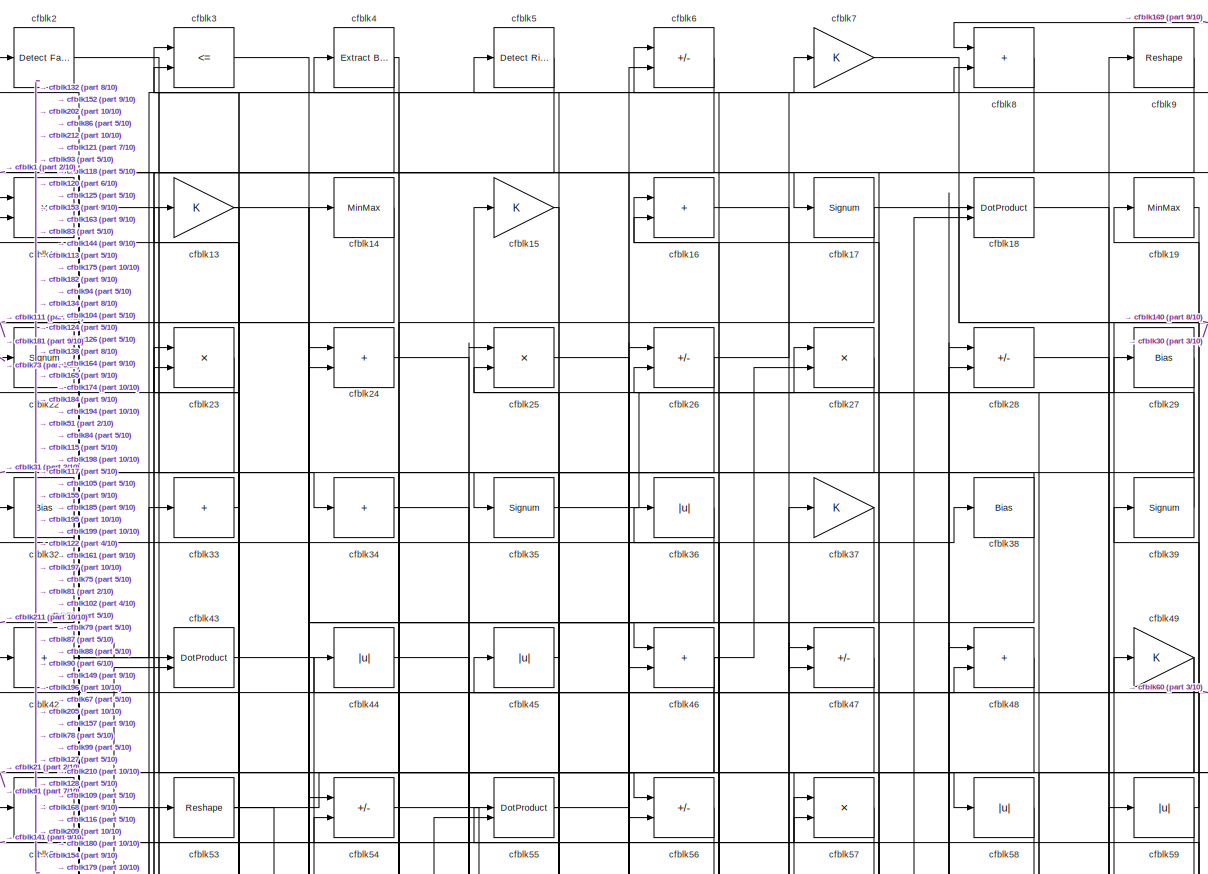
[diagram: root canvas - part 1/10, full width, top band]
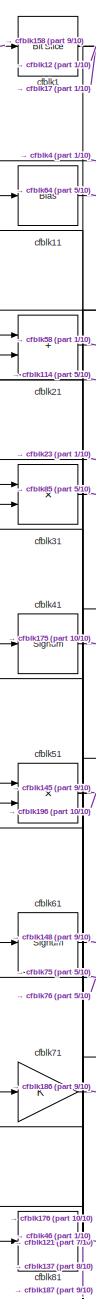
[diagram: root canvas - part 2/10, top left region]
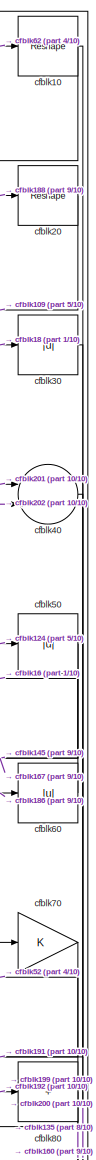
[diagram: root canvas - part 3/10, top right region]
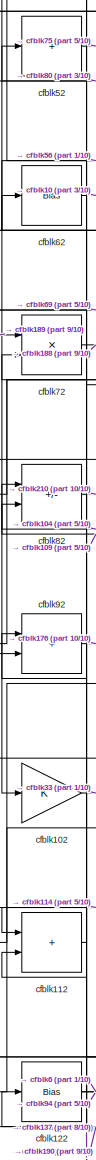
[diagram: root canvas - part 4/10, middle left region]
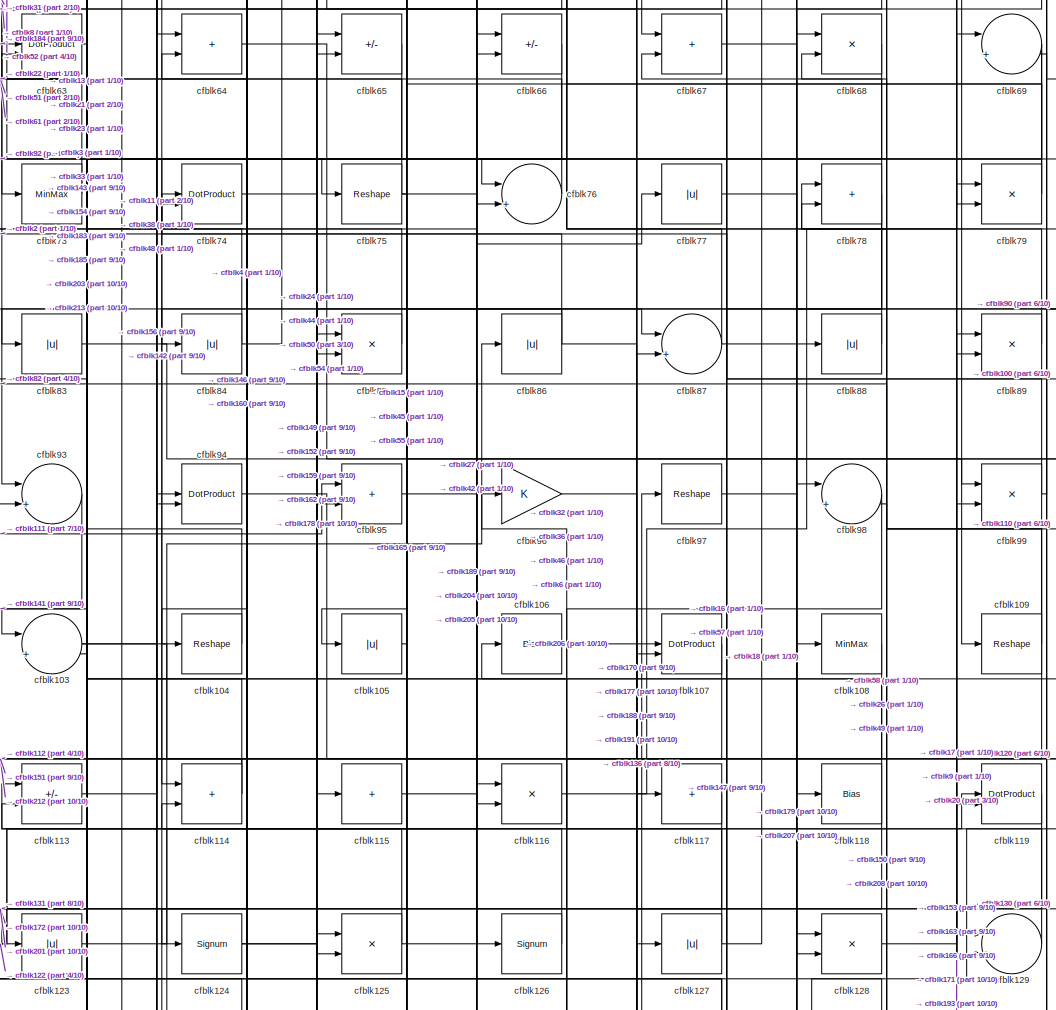
[diagram: root canvas - part 5/10, central region]
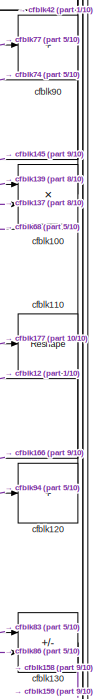
[diagram: root canvas - part 6/10, middle right region]
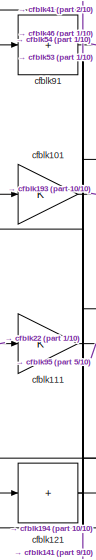
[diagram: root canvas - part 7/10, middle left region]
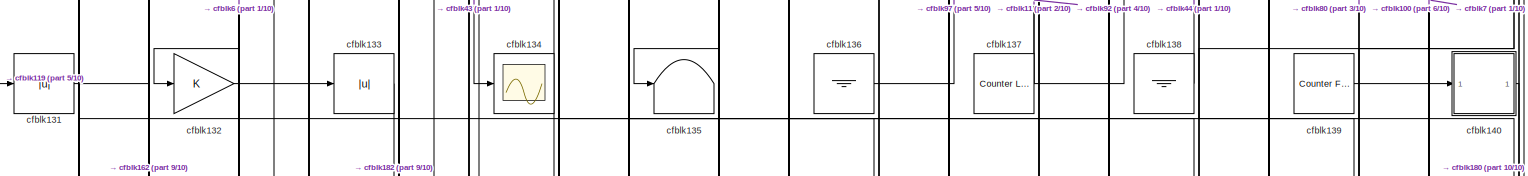
[diagram: root canvas - part 8/10, full width, middle band]
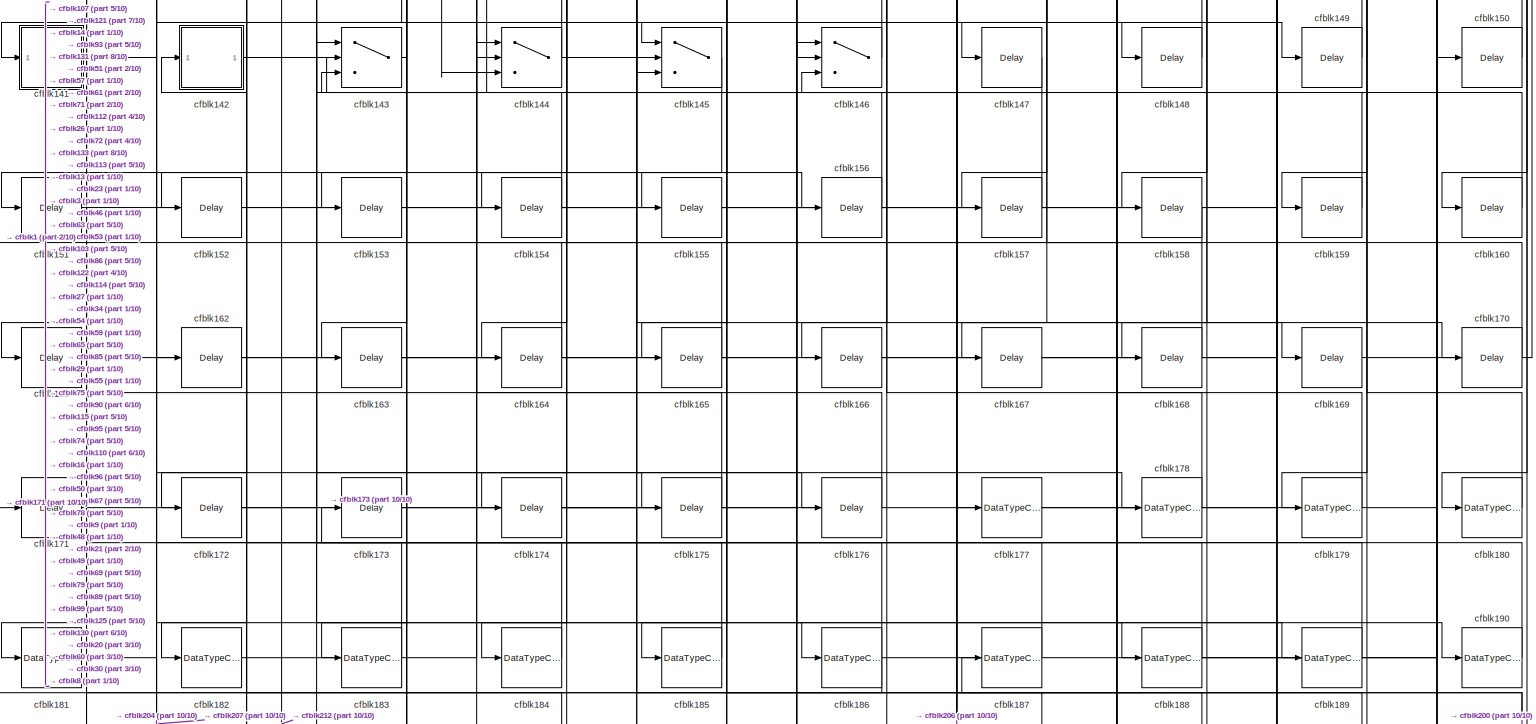
[diagram: root canvas - part 9/10, full width, bottom band]
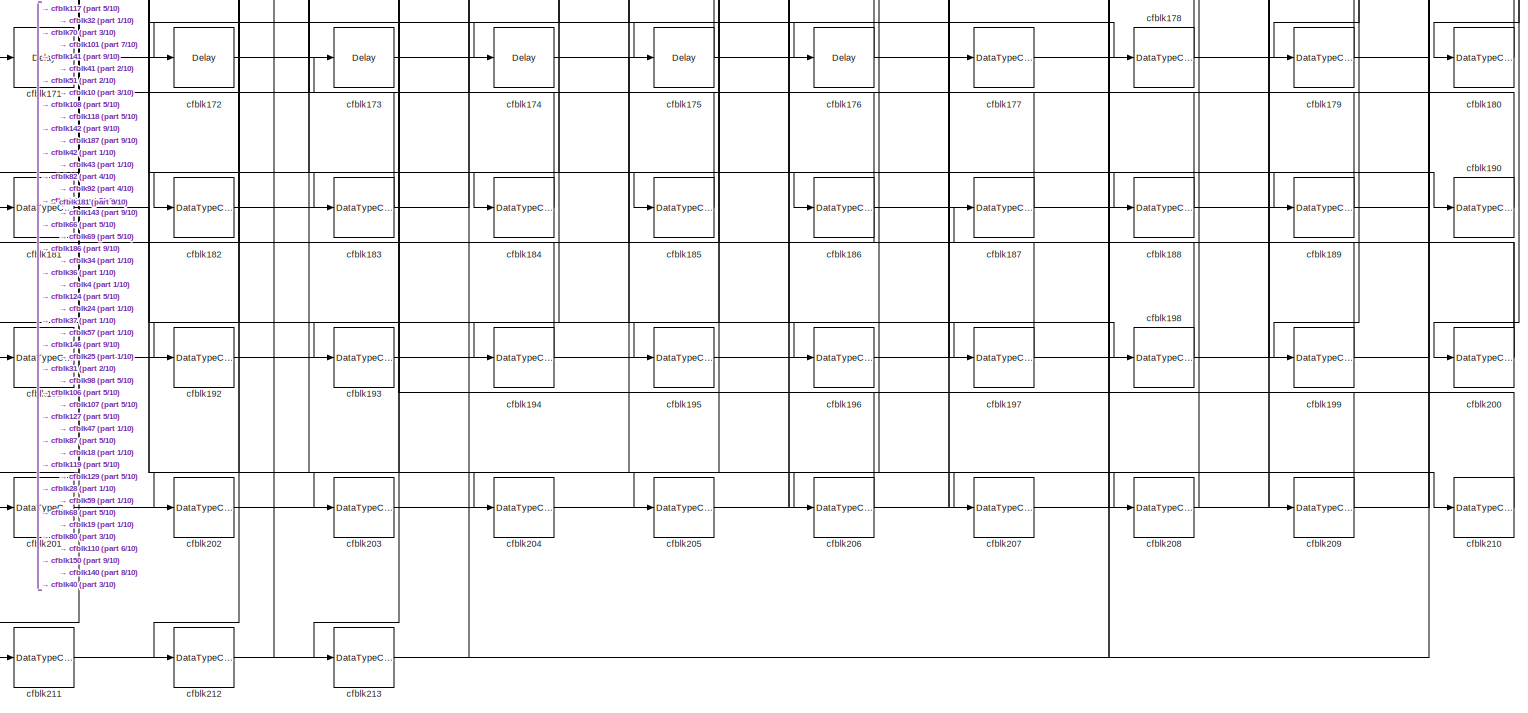
[diagram: root canvas - part 10/10, full width, bottom band]
MODEL slx_0f4fd5a448fb
KIND model
CONFIG AbsTol = auto
CONFIG EnableMultiTasking = off
CONFIG FixedStep = auto
CONFIG MaxStep = auto
CONFIG MinStep = auto
CONFIG RelTol = 1e-3
CONFIG SampleTimeConstraint = Unconstrained
CONFIG SolverName = VariableStepAuto
CONFIG StartTime = 0.0
CONFIG StopTime = 10.0
BLOCK [Reference] cfblk1  REF=hdlsllib/Logic and Bit
Operations/Bit Slice
  SourceBlock = hdlsllib/Logic and Bit\nOperations/Bit Slice
  SourceType = Bit Slice
BLOCK [Reshape] cfblk10
BLOCK [Product] cfblk100
  Inputs = */
  RndMeth = Zero
  SaturateOnIntegerOverflow = on
BLOCK [Gain] cfblk101
BLOCK [Gain] cfblk102
BLOCK [Sum] cfblk103
  Inputs = |++
BLOCK [Reshape] cfblk104
BLOCK [Abs] cfblk105
  SaturateOnIntegerOverflow = off
BLOCK [Bias] cfblk106
  Bias = 0.0
  SaturateOnIntegerOverflow = off
BLOCK [DotProduct] cfblk107
  OutDataTypeStr = Inherit: Inherit via internal rule
BLOCK [MinMax] cfblk108
BLOCK [Reshape] cfblk109
BLOCK [Bias] cfblk11
  Bias = 0.0
  SaturateOnIntegerOverflow = off
BLOCK [Reshape] cfblk110
BLOCK [Gain] cfblk111
BLOCK [Sum] cfblk112
  IconShape = rectangular
BLOCK [Sum] cfblk113
  IconShape = rectangular
  Inputs = +-
BLOCK [Sum] cfblk114
  IconShape = rectangular
BLOCK [Sum] cfblk115
  IconShape = rectangular
  Inputs = +
BLOCK [Product] cfblk116
  Inputs = */
  RndMeth = Zero
  SaturateOnIntegerOverflow = on
BLOCK [Sum] cfblk117
  IconShape = rectangular
  Inputs = +
BLOCK [Bias] cfblk118
  Bias = 0.0
  SaturateOnIntegerOverflow = off
BLOCK [DotProduct] cfblk119
  OutDataTypeStr = Inherit: Inherit via internal rule
BLOCK [Product] cfblk12
  Inputs = */
  RndMeth = Zero
  SaturateOnIntegerOverflow = on
BLOCK [Sum] cfblk120
  IconShape = rectangular
  Inputs = +
BLOCK [Sum] cfblk121
  IconShape = rectangular
  Inputs = +
BLOCK [Bias] cfblk122
  Bias = 0.0
  SaturateOnIntegerOverflow = off
BLOCK [Abs] cfblk123
  SaturateOnIntegerOverflow = off
BLOCK [Signum] cfblk124
BLOCK [Product] cfblk125
  Inputs = */
  RndMeth = Zero
  SaturateOnIntegerOverflow = on
BLOCK [Signum] cfblk126
BLOCK [Abs] cfblk127
  SaturateOnIntegerOverflow = off
BLOCK [Product] cfblk128
  Inputs = */
  RndMeth = Zero
  SaturateOnIntegerOverflow = on
BLOCK [Sum] cfblk129
  Inputs = |++
BLOCK [Gain] cfblk13
BLOCK [Sum] cfblk130
  IconShape = rectangular
  Inputs = +-
BLOCK [Abs] cfblk131
  SaturateOnIntegerOverflow = off
BLOCK [Gain] cfblk132
BLOCK [Abs] cfblk133
  SaturateOnIntegerOverflow = off
BLOCK [Scope] cfblk134
  Floating = off
  NumInputPorts = 1
  ScopeSpecificationString = Simulink.scopes.TimeScopeBlockCfg('CurrentConfiguration', extmgr.ConfigurationSet(extmgr.Configuration('Core','General UI',true),extmgr.Configuration('Core','Source UI',true),extmgr.Configuration('Sources','WiredSimulink',true,'DataLoggingVariableName','ScopeData2','DataLoggingSaveFormat','Array','DataLoggingLimitDataPoints',true,'DataLoggingDecimation','1'),extmgr.Configuration('Visuals','Time Do...<+868ch>
BLOCK [Terminator] cfblk135
BLOCK [Ground] cfblk136
BLOCK [Reference] cfblk137  REF=hdlsllib/Sources/Counter
Limited
  SourceBlock = hdlsllib/Sources/Counter\nLimited
  SourceType = Counter Limited
BLOCK [Ground] cfblk138
BLOCK [Reference] cfblk139  REF=hdlsllib/Sources/Counter
Free-Running
  SourceBlock = hdlsllib/Sources/Counter\nFree-Running
  SourceType = Counter Free-Running
BLOCK [MinMax] cfblk14
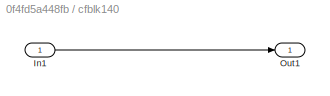
BLOCK [SubSystem] cfblk140
  LibrarySourceBlock = hdlsllib/Ports &\nSubsystems/Subsystem
BLOCK [Inport] cfblk140/In1
BLOCK [Outport] cfblk140/Out1
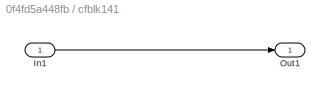
BLOCK [SubSystem] cfblk141
  LibrarySourceBlock = hdlsllib/Ports &\nSubsystems/Subsystem
BLOCK [Inport] cfblk141/In1
BLOCK [Outport] cfblk141/Out1
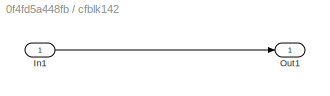
BLOCK [SubSystem] cfblk142
  LibrarySourceBlock = hdlsllib/Ports &\nSubsystems/Subsystem
BLOCK [Inport] cfblk142/In1
BLOCK [Outport] cfblk142/Out1
BLOCK [Switch] cfblk143
  InputSameDT = off
  SaturateOnIntegerOverflow = off
BLOCK [Switch] cfblk144
  InputSameDT = off
  SaturateOnIntegerOverflow = off
BLOCK [Switch] cfblk145
  InputSameDT = off
  SaturateOnIntegerOverflow = off
BLOCK [Switch] cfblk146
  InputSameDT = off
  SaturateOnIntegerOverflow = off
BLOCK [Delay] cfblk147
  InputPortMap = u0
  SampleTime = 1
BLOCK [Delay] cfblk148
  InputPortMap = u0
  SampleTime = 1
BLOCK [Delay] cfblk149
  InputPortMap = u0
  SampleTime = 1
BLOCK [Gain] cfblk15
BLOCK [Delay] cfblk150
  InputPortMap = u0
  SampleTime = 1
BLOCK [Delay] cfblk151
  InputPortMap = u0
  SampleTime = 1
BLOCK [Delay] cfblk152
  InputPortMap = u0
  SampleTime = 1
BLOCK [Delay] cfblk153
  InputPortMap = u0
  SampleTime = 1
BLOCK [Delay] cfblk154
  InputPortMap = u0
  SampleTime = 1
BLOCK [Delay] cfblk155
  InputPortMap = u0
  SampleTime = 1
BLOCK [Delay] cfblk156
  InputPortMap = u0
  SampleTime = 1
BLOCK [Delay] cfblk157
  InputPortMap = u0
  SampleTime = 1
BLOCK [Delay] cfblk158
  InputPortMap = u0
  SampleTime = 1
BLOCK [Delay] cfblk159
  InputPortMap = u0
  SampleTime = 1
BLOCK [Sum] cfblk16
  IconShape = rectangular
BLOCK [Delay] cfblk160
  InputPortMap = u0
  SampleTime = 1
BLOCK [Delay] cfblk161
  InputPortMap = u0
  SampleTime = 1
BLOCK [Delay] cfblk162
  InputPortMap = u0
  SampleTime = 1
BLOCK [Delay] cfblk163
  InputPortMap = u0
  SampleTime = 1
BLOCK [Delay] cfblk164
  InputPortMap = u0
  SampleTime = 1
BLOCK [Delay] cfblk165
  InputPortMap = u0
  SampleTime = 1
BLOCK [Delay] cfblk166
  InputPortMap = u0
  SampleTime = 1
BLOCK [Delay] cfblk167
  InputPortMap = u0
  SampleTime = 1
BLOCK [Delay] cfblk168
  InputPortMap = u0
  SampleTime = 1
BLOCK [Delay] cfblk169
  InputPortMap = u0
  SampleTime = 1
BLOCK [Signum] cfblk17
BLOCK [Delay] cfblk170
  InputPortMap = u0
  SampleTime = 1
BLOCK [Delay] cfblk171
  InputPortMap = u0
  SampleTime = 1
BLOCK [Delay] cfblk172
  InputPortMap = u0
  SampleTime = 1
BLOCK [Delay] cfblk173
  InputPortMap = u0
  SampleTime = 1
BLOCK [Delay] cfblk174
  InputPortMap = u0
  SampleTime = 1
BLOCK [Delay] cfblk175
  InputPortMap = u0
  SampleTime = 1
BLOCK [Delay] cfblk176
  InputPortMap = u0
  SampleTime = 1
BLOCK [DataTypeConversion] cfblk177
  OutDataTypeStr = uint8
  RndMeth = Floor
  SaturateOnIntegerOverflow = off
BLOCK [DataTypeConversion] cfblk178
  OutDataTypeStr = uint8
  RndMeth = Floor
  SaturateOnIntegerOverflow = off
BLOCK [DataTypeConversion] cfblk179
  OutDataTypeStr = uint8
  RndMeth = Floor
  SaturateOnIntegerOverflow = off
BLOCK [DotProduct] cfblk18
  OutDataTypeStr = Inherit: Inherit via internal rule
BLOCK [DataTypeConversion] cfblk180
  OutDataTypeStr = uint8
  RndMeth = Floor
  SaturateOnIntegerOverflow = off
BLOCK [DataTypeConversion] cfblk181
  OutDataTypeStr = uint8
  RndMeth = Floor
  SaturateOnIntegerOverflow = off
BLOCK [DataTypeConversion] cfblk182
  OutDataTypeStr = uint8
  RndMeth = Floor
  SaturateOnIntegerOverflow = off
BLOCK [DataTypeConversion] cfblk183
  OutDataTypeStr = uint8
  RndMeth = Floor
  SaturateOnIntegerOverflow = off
BLOCK [DataTypeConversion] cfblk184
  OutDataTypeStr = uint8
  RndMeth = Floor
  SaturateOnIntegerOverflow = off
BLOCK [DataTypeConversion] cfblk185
  OutDataTypeStr = uint8
  RndMeth = Floor
  SaturateOnIntegerOverflow = off
BLOCK [DataTypeConversion] cfblk186
  RndMeth = Floor
  SaturateOnIntegerOverflow = off
BLOCK [DataTypeConversion] cfblk187
  OutDataTypeStr = uint8
  RndMeth = Floor
  SaturateOnIntegerOverflow = off
BLOCK [DataTypeConversion] cfblk188
  RndMeth = Floor
  SaturateOnIntegerOverflow = off
BLOCK [DataTypeConversion] cfblk189
  OutDataTypeStr = uint8
  RndMeth = Floor
  SaturateOnIntegerOverflow = off
BLOCK [MinMax] cfblk19
BLOCK [DataTypeConversion] cfblk190
  OutDataTypeStr = uint8
  RndMeth = Floor
  SaturateOnIntegerOverflow = off
BLOCK [DataTypeConversion] cfblk191
  OutDataTypeStr = uint8
  RndMeth = Floor
  SaturateOnIntegerOverflow = off
BLOCK [DataTypeConversion] cfblk192
  OutDataTypeStr = uint8
  RndMeth = Floor
  SaturateOnIntegerOverflow = off
BLOCK [DataTypeConversion] cfblk193
  OutDataTypeStr = uint8
  RndMeth = Floor
  SaturateOnIntegerOverflow = off
BLOCK [DataTypeConversion] cfblk194
  OutDataTypeStr = uint8
  RndMeth = Floor
  SaturateOnIntegerOverflow = off
BLOCK [DataTypeConversion] cfblk195
  OutDataTypeStr = uint8
  RndMeth = Floor
  SaturateOnIntegerOverflow = off
BLOCK [DataTypeConversion] cfblk196
  OutDataTypeStr = uint8
  RndMeth = Floor
  SaturateOnIntegerOverflow = off
BLOCK [DataTypeConversion] cfblk197
  RndMeth = Floor
  SaturateOnIntegerOverflow = off
BLOCK [DataTypeConversion] cfblk198
  OutDataTypeStr = uint8
  RndMeth = Floor
  SaturateOnIntegerOverflow = off
BLOCK [DataTypeConversion] cfblk199
  OutDataTypeStr = uint8
  RndMeth = Floor
  SaturateOnIntegerOverflow = off
BLOCK [Reference] cfblk2  REF=hdlsllib/Logic and Bit
Operations/Detect Fall
Negative
  SourceBlock = hdlsllib/Logic and Bit\nOperations/Detect Fall\nNegative
  SourceType = Detect Fall Negative
BLOCK [Reshape] cfblk20
BLOCK [DataTypeConversion] cfblk200
  RndMeth = Floor
  SaturateOnIntegerOverflow = off
BLOCK [DataTypeConversion] cfblk201
  OutDataTypeStr = uint8
  RndMeth = Floor
  SaturateOnIntegerOverflow = off
BLOCK [DataTypeConversion] cfblk202
  OutDataTypeStr = uint8
  RndMeth = Floor
  SaturateOnIntegerOverflow = off
BLOCK [DataTypeConversion] cfblk203
  OutDataTypeStr = uint8
  RndMeth = Floor
  SaturateOnIntegerOverflow = off
BLOCK [DataTypeConversion] cfblk204
  OutDataTypeStr = uint8
  RndMeth = Floor
  SaturateOnIntegerOverflow = off
BLOCK [DataTypeConversion] cfblk205
  OutDataTypeStr = uint8
  RndMeth = Floor
  SaturateOnIntegerOverflow = off
BLOCK [DataTypeConversion] cfblk206
  RndMeth = Floor
  SaturateOnIntegerOverflow = off
BLOCK [DataTypeConversion] cfblk207
  OutDataTypeStr = uint8
  RndMeth = Floor
  SaturateOnIntegerOverflow = off
BLOCK [DataTypeConversion] cfblk208
  OutDataTypeStr = uint8
  RndMeth = Floor
  SaturateOnIntegerOverflow = off
BLOCK [DataTypeConversion] cfblk209
  OutDataTypeStr = uint8
  RndMeth = Floor
  SaturateOnIntegerOverflow = off
BLOCK [Sum] cfblk21
  IconShape = rectangular
BLOCK [DataTypeConversion] cfblk210
  OutDataTypeStr = uint8
  RndMeth = Floor
  SaturateOnIntegerOverflow = off
BLOCK [DataTypeConversion] cfblk211
  OutDataTypeStr = uint8
  RndMeth = Floor
  SaturateOnIntegerOverflow = off
BLOCK [DataTypeConversion] cfblk212
  RndMeth = Floor
  SaturateOnIntegerOverflow = off
BLOCK [DataTypeConversion] cfblk213
  OutDataTypeStr = uint8
  RndMeth = Floor
  SaturateOnIntegerOverflow = off
BLOCK [Signum] cfblk22
BLOCK [Product] cfblk23
  Inputs = */
  RndMeth = Zero
  SaturateOnIntegerOverflow = on
BLOCK [Sum] cfblk24
  IconShape = rectangular
BLOCK [Product] cfblk25
  Inputs = */
  RndMeth = Zero
  SaturateOnIntegerOverflow = on
BLOCK [Sum] cfblk26
  IconShape = rectangular
  Inputs = +-
BLOCK [Product] cfblk27
  Inputs = */
  RndMeth = Zero
  SaturateOnIntegerOverflow = on
BLOCK [Sum] cfblk28
  IconShape = rectangular
  Inputs = +-
BLOCK [Bias] cfblk29
  Bias = 0.0
  SaturateOnIntegerOverflow = off
BLOCK [RelationalOperator] cfblk3
  InputSameDT = off
  Operator = <=
  OutDataTypeStr = boolean
BLOCK [Abs] cfblk30
  SaturateOnIntegerOverflow = off
BLOCK [Product] cfblk31
  Inputs = */
  RndMeth = Zero
  SaturateOnIntegerOverflow = on
BLOCK [Bias] cfblk32
  Bias = 0.0
  SaturateOnIntegerOverflow = off
BLOCK [Sum] cfblk33
  IconShape = rectangular
  Inputs = +
BLOCK [Sum] cfblk34
  IconShape = rectangular
  Inputs = +
BLOCK [Signum] cfblk35
BLOCK [Abs] cfblk36
  SaturateOnIntegerOverflow = off
BLOCK [Gain] cfblk37
BLOCK [Bias] cfblk38
  Bias = 0.0
  SaturateOnIntegerOverflow = off
BLOCK [Signum] cfblk39
BLOCK [Reference] cfblk4  REF=simulink/Logic and Bit
Operations/Extract Bits
  LibrarySourceBlock = hdlsllib/Logic and Bit\nOperations/Extract Bits
  SourceBlock = simulink/Logic and Bit\nOperations/Extract Bits
  SourceType = Extract Bits
BLOCK [Sum] cfblk40
  Inputs = |++
BLOCK [Signum] cfblk41
BLOCK [Sum] cfblk42
  IconShape = rectangular
  Inputs = +
BLOCK [DotProduct] cfblk43
  OutDataTypeStr = Inherit: Inherit via internal rule
BLOCK [Abs] cfblk44
  SaturateOnIntegerOverflow = off
BLOCK [Abs] cfblk45
  SaturateOnIntegerOverflow = off
BLOCK [Sum] cfblk46
  IconShape = rectangular
BLOCK [Sum] cfblk47
  IconShape = rectangular
  Inputs = +-
BLOCK [Sum] cfblk48
  IconShape = rectangular
BLOCK [Gain] cfblk49
BLOCK [Reference] cfblk5  REF=hdlsllib/Logic and Bit
Operations/Detect Rise
Nonnegative
  SourceBlock = hdlsllib/Logic and Bit\nOperations/Detect Rise\nNonnegative
  SourceType = Detect Rise Nonnegative
BLOCK [Abs] cfblk50
  SaturateOnIntegerOverflow = off
BLOCK [Product] cfblk51
  Inputs = */
  RndMeth = Zero
  SaturateOnIntegerOverflow = on
BLOCK [Sum] cfblk52
  IconShape = rectangular
  Inputs = +
BLOCK [Reshape] cfblk53
BLOCK [Sum] cfblk54
  IconShape = rectangular
  Inputs = +-
BLOCK [DotProduct] cfblk55
  OutDataTypeStr = Inherit: Inherit via internal rule
BLOCK [Sum] cfblk56
  IconShape = rectangular
  Inputs = +-
BLOCK [Product] cfblk57
  Inputs = */
  RndMeth = Zero
  SaturateOnIntegerOverflow = on
BLOCK [Abs] cfblk58
  SaturateOnIntegerOverflow = off
BLOCK [Abs] cfblk59
  SaturateOnIntegerOverflow = off
BLOCK [Sum] cfblk6
  IconShape = rectangular
  Inputs = +-
BLOCK [Abs] cfblk60
  SaturateOnIntegerOverflow = off
BLOCK [Signum] cfblk61
BLOCK [Bias] cfblk62
  Bias = 0.0
  SaturateOnIntegerOverflow = off
BLOCK [DotProduct] cfblk63
  OutDataTypeStr = Inherit: Inherit via internal rule
BLOCK [Sum] cfblk64
  IconShape = rectangular
BLOCK [Sum] cfblk65
  IconShape = rectangular
  Inputs = +-
BLOCK [Sum] cfblk66
  IconShape = rectangular
  Inputs = +-
BLOCK [Sum] cfblk67
  IconShape = rectangular
BLOCK [Product] cfblk68
  Inputs = */
  RndMeth = Zero
  SaturateOnIntegerOverflow = on
BLOCK [Sum] cfblk69
  Inputs = |++
BLOCK [Gain] cfblk7
BLOCK [Gain] cfblk70
BLOCK [Gain] cfblk71
BLOCK [Product] cfblk72
  Inputs = */
  RndMeth = Zero
  SaturateOnIntegerOverflow = on
BLOCK [MinMax] cfblk73
BLOCK [DotProduct] cfblk74
  OutDataTypeStr = Inherit: Inherit via internal rule
BLOCK [Reshape] cfblk75
BLOCK [Sum] cfblk76
  Inputs = |++
BLOCK [Abs] cfblk77
  SaturateOnIntegerOverflow = off
BLOCK [Sum] cfblk78
  IconShape = rectangular
BLOCK [Product] cfblk79
  Inputs = */
  RndMeth = Zero
  SaturateOnIntegerOverflow = on
BLOCK [Sum] cfblk8
  IconShape = rectangular
BLOCK [Sum] cfblk80
  IconShape = rectangular
  Inputs = +
BLOCK [Bias] cfblk81
  Bias = 0.0
  SaturateOnIntegerOverflow = off
BLOCK [Sum] cfblk82
  IconShape = rectangular
  Inputs = +-
BLOCK [Abs] cfblk83
  SaturateOnIntegerOverflow = off
BLOCK [Abs] cfblk84
  SaturateOnIntegerOverflow = off
BLOCK [Product] cfblk85
  Inputs = */
  RndMeth = Zero
  SaturateOnIntegerOverflow = on
BLOCK [Abs] cfblk86
  SaturateOnIntegerOverflow = off
BLOCK [Sum] cfblk87
  Inputs = |++
BLOCK [Abs] cfblk88
  SaturateOnIntegerOverflow = off
BLOCK [Product] cfblk89
  Inputs = */
  RndMeth = Zero
  SaturateOnIntegerOverflow = on
BLOCK [Reshape] cfblk9
BLOCK [Sum] cfblk90
  IconShape = rectangular
  Inputs = +
BLOCK [Sum] cfblk91
  IconShape = rectangular
  Inputs = +
BLOCK [Sum] cfblk92
  IconShape = rectangular
BLOCK [Sum] cfblk93
  Inputs = |++
BLOCK [DotProduct] cfblk94
  OutDataTypeStr = Inherit: Inherit via internal rule
BLOCK [Sum] cfblk95
  IconShape = rectangular
BLOCK [Gain] cfblk96
BLOCK [Reshape] cfblk97
BLOCK [Sum] cfblk98
  Inputs = |++
BLOCK [Product] cfblk99
  Inputs = */
  RndMeth = Zero
  SaturateOnIntegerOverflow = on
LINE cfblk100:1 -> cfblk74:2
LINE cfblk101:1 -> cfblk193:1
LINE cfblk102:1 -> cfblk33:1
NET cfblk103:1 -> cfblk116:2, cfblk156:1
LINE cfblk104:1 -> cfblk82:1
LINE cfblk105:1 -> cfblk55:1
LINE cfblk106:1 -> cfblk177:1
LINE cfblk107:1 -> cfblk151:1
LINE cfblk108:1 -> cfblk212:1
NET cfblk109:1 -> cfblk123:1, cfblk26:2, cfblk82:2
NET cfblk10:1 -> cfblk192:1, cfblk80:1
NET cfblk110:1 -> cfblk166:1, cfblk68:2
LINE cfblk111:1 -> cfblk95:1
LINE cfblk112:1 -> cfblk62:1
LINE cfblk113:1 -> cfblk48:2
NET cfblk114:1 -> cfblk112:1, cfblk21:1
LINE cfblk115:1 -> cfblk189:1
LINE cfblk116:1 -> cfblk9:1
LINE cfblk117:1 -> cfblk201:1
NET cfblk118:1 -> cfblk172:1, cfblk3:1
LINE cfblk119:1 -> cfblk131:1
LINE cfblk11:1 -> cfblk64:1
LINE cfblk120:1 -> cfblk12:1
NET cfblk121:1 -> cfblk41:1, cfblk53:1
NET cfblk122:1 -> cfblk6:2, cfblk94:1
LINE cfblk123:1 -> cfblk119:1
NET cfblk124:1 -> cfblk178:1, cfblk50:1
NET cfblk125:1 -> cfblk23:1, cfblk77:1
LINE cfblk126:1 -> cfblk4:1
NET cfblk127:1 -> cfblk18:2, cfblk96:1
LINE cfblk128:1 -> cfblk89:2
LINE cfblk129:1 -> cfblk113:1
LINE cfblk12:1 -> cfblk34:1
NET cfblk130:1 -> cfblk158:1, cfblk159:1
LINE cfblk131:1 -> cfblk162:1
LINE cfblk132:1 -> cfblk133:1
LINE cfblk133:1 -> cfblk182:1
LINE cfblk136:1 -> cfblk97:1
NET cfblk137:1 -> cfblk100:2, cfblk11:1, cfblk92:1
LINE cfblk138:1 -> cfblk44:1
LINE cfblk139:1 -> cfblk100:1
NET cfblk13:1 -> cfblk163:1, cfblk47:2
LINE cfblk140/In1:1 -> cfblk140/Out1:1
LINE cfblk140:1 -> cfblk180:1
LINE cfblk141/In1:1 -> cfblk141/Out1:1
NET cfblk141:1 -> cfblk121:1, cfblk207:1, cfblk57:2
LINE cfblk142/In1:1 -> cfblk142/Out1:1
NET cfblk142:1 -> cfblk112:2, cfblk86:1
LINE cfblk143:1 -> cfblk103:2
NET cfblk144:1 -> cfblk122:1, cfblk169:1, cfblk49:1
LINE cfblk145:1 -> cfblk161:1
LINE cfblk146:1 -> cfblk74:1
LINE cfblk147:1 -> cfblk146:3
LINE cfblk148:1 -> cfblk21:2
LINE cfblk149:1 -> cfblk125:1
LINE cfblk14:1 -> cfblk181:1
LINE cfblk150:1 -> cfblk78:2
LINE cfblk151:1 -> cfblk69:1
LINE cfblk152:1 -> cfblk95:2
LINE cfblk153:1 -> cfblk99:2
LINE cfblk154:1 -> cfblk113:2
LINE cfblk155:1 -> cfblk48:1
LINE cfblk156:1 -> cfblk143:2
LINE cfblk157:1 -> cfblk3:2
LINE cfblk158:1 -> cfblk1:1
LINE cfblk159:1 -> cfblk85:1
LINE cfblk15:1 -> cfblk105:1
LINE cfblk160:1 -> cfblk114:2
LINE cfblk161:1 -> cfblk26:1
LINE cfblk162:1 -> cfblk65:2
LINE cfblk163:1 -> cfblk79:1
LINE cfblk164:1 -> cfblk23:2
LINE cfblk165:1 -> cfblk54:2
LINE cfblk166:1 -> cfblk89:1
LINE cfblk167:1 -> cfblk190:1
LINE cfblk168:1 -> cfblk144:1
LINE cfblk169:1 -> cfblk8:1
LINE cfblk16:1 -> cfblk149:1
LINE cfblk170:1 -> cfblk67:2
LINE cfblk171:1 -> cfblk129:2
LINE cfblk172:1 -> cfblk93:2
LINE cfblk173:1 -> cfblk146:1
LINE cfblk174:1 -> cfblk208:1
LINE cfblk175:1 -> cfblk24:1
LINE cfblk176:1 -> cfblk31:2
LINE cfblk177:1 -> cfblk110:1
LINE cfblk178:1 -> cfblk106:1
LINE cfblk179:1 -> cfblk68:1
NET cfblk17:1 -> cfblk104:1, cfblk79:2
LINE cfblk180:1 -> cfblk19:1
LINE cfblk181:1 -> cfblk204:1
LINE cfblk182:1 -> cfblk14:1
LINE cfblk183:1 -> cfblk143:1
LINE cfblk184:1 -> cfblk63:1
LINE cfblk185:1 -> cfblk63:2
NET cfblk186:1 -> cfblk144:2, cfblk171:1, cfblk60:1
LINE cfblk187:1 -> cfblk71:1
NET cfblk188:1 -> cfblk107:1, cfblk20:1
LINE cfblk189:1 -> cfblk72:1
LINE cfblk18:1 -> cfblk30:1
LINE cfblk190:1 -> cfblk72:2
LINE cfblk191:1 -> cfblk107:2
LINE cfblk192:1 -> cfblk70:1
LINE cfblk193:1 -> cfblk119:2
LINE cfblk194:1 -> cfblk101:1
LINE cfblk195:1 -> cfblk59:1
LINE cfblk196:1 -> cfblk37:1
NET cfblk197:1 -> cfblk18:1, cfblk47:1
LINE cfblk198:1 -> cfblk25:1
LINE cfblk199:1 -> cfblk25:2
LINE cfblk19:1 -> cfblk179:1
NET cfblk1:1 -> cfblk12:2, cfblk17:1, cfblk81:1
NET cfblk200:1 -> cfblk142:1, cfblk187:1
LINE cfblk201:1 -> cfblk40:1
LINE cfblk202:1 -> cfblk40:2
LINE cfblk203:1 -> cfblk127:1
LINE cfblk204:1 -> cfblk66:1
LINE cfblk205:1 -> cfblk66:2
NET cfblk206:1 -> cfblk129:1, cfblk143:3, cfblk87:2
LINE cfblk207:1 -> cfblk98:1
LINE cfblk208:1 -> cfblk98:2
LINE cfblk209:1 -> cfblk173:1
LINE cfblk20:1 -> cfblk109:1
LINE cfblk210:1 -> cfblk28:1
LINE cfblk211:1 -> cfblk28:2
NET cfblk212:1 -> cfblk150:1, cfblk24:2, cfblk43:2
LINE cfblk213:1 -> cfblk108:1
LINE cfblk21:1 -> cfblk58:1
LINE cfblk22:1 -> cfblk111:1
LINE cfblk23:1 -> cfblk31:1
LINE cfblk24:1 -> cfblk115:1
LINE cfblk25:1 -> cfblk197:1
NET cfblk26:1 -> cfblk152:1, cfblk8:2
LINE cfblk27:1 -> cfblk164:1
LINE cfblk28:1 -> cfblk209:1
LINE cfblk29:1 -> cfblk185:1
LINE cfblk2:1 -> cfblk126:1
LINE cfblk30:1 -> cfblk160:1
NET cfblk31:1 -> cfblk76:2, cfblk85:2
LINE cfblk32:1 -> cfblk211:1
LINE cfblk33:1 -> cfblk83:1
NET cfblk34:1 -> cfblk184:1, cfblk198:1
LINE cfblk35:1 -> cfblk29:1
LINE cfblk36:1 -> cfblk174:1
LINE cfblk37:1 -> cfblk195:1
NET cfblk38:1 -> cfblk35:1, cfblk94:2
LINE cfblk39:1 -> cfblk15:1
LINE cfblk3:1 -> cfblk46:1
LINE cfblk40:1 -> cfblk200:1
LINE cfblk41:1 -> cfblk175:1
NET cfblk42:1 -> cfblk116:1, cfblk202:1, cfblk43:1, cfblk7:1
LINE cfblk43:1 -> cfblk134:1
LINE cfblk44:1 -> cfblk87:1
LINE cfblk45:1 -> cfblk5:1
NET cfblk46:1 -> cfblk153:1, cfblk27:2, cfblk76:1, cfblk91:1
LINE cfblk47:1 -> cfblk56:2
LINE cfblk48:1 -> cfblk67:1
NET cfblk49:1 -> cfblk124:1, cfblk168:1
NET cfblk4:1 -> cfblk194:1, cfblk51:2
NET cfblk50:1 -> cfblk145:3, cfblk167:1
NET cfblk51:1 -> cfblk145:2, cfblk196:1
LINE cfblk52:1 -> cfblk75:1
NET cfblk53:1 -> cfblk144:3, cfblk56:1
LINE cfblk54:1 -> cfblk117:1
NET cfblk55:1 -> cfblk155:1, cfblk38:1
LINE cfblk56:1 -> cfblk102:1
LINE cfblk57:1 -> cfblk205:1
LINE cfblk58:1 -> cfblk128:2
NET cfblk59:1 -> cfblk154:1, cfblk39:1
LINE cfblk5:1 -> cfblk73:1
LINE cfblk60:1 -> cfblk16:1
LINE cfblk61:1 -> cfblk148:1
LINE cfblk62:1 -> cfblk10:1
LINE cfblk63:1 -> cfblk183:1
LINE cfblk64:1 -> cfblk99:1
LINE cfblk65:1 -> cfblk114:1
LINE cfblk66:1 -> cfblk203:1
LINE cfblk67:1 -> cfblk118:1
LINE cfblk68:1 -> cfblk103:1
NET cfblk69:1 -> cfblk213:1, cfblk92:2
LINE cfblk6:1 -> cfblk132:1
LINE cfblk70:1 -> cfblk191:1
LINE cfblk71:1 -> cfblk186:1
LINE cfblk72:1 -> cfblk188:1
LINE cfblk73:1 -> cfblk22:1
LINE cfblk74:1 -> cfblk65:1
NET cfblk75:1 -> cfblk165:1, cfblk27:1, cfblk51:1
LINE cfblk76:1 -> cfblk61:1
LINE cfblk77:1 -> cfblk90:1
NET cfblk78:1 -> cfblk125:2, cfblk147:1, cfblk57:1
NET cfblk79:1 -> cfblk45:1, cfblk6:1
LINE cfblk7:1 -> cfblk140:1
NET cfblk80:1 -> cfblk135:1, cfblk199:1, cfblk52:1
LINE cfblk81:1 -> cfblk46:2
LINE cfblk82:1 -> cfblk210:1
LINE cfblk83:1 -> cfblk130:1
NET cfblk84:1 -> cfblk13:1, cfblk55:2
LINE cfblk85:1 -> cfblk64:2
NET cfblk86:1 -> cfblk130:2, cfblk2:1, cfblk84:1
NET cfblk87:1 -> cfblk32:1, cfblk88:1
LINE cfblk88:1 -> cfblk36:1
LINE cfblk89:1 -> cfblk78:1
LINE cfblk8:1 -> cfblk93:1
NET cfblk90:1 -> cfblk145:1, cfblk42:1
LINE cfblk91:1 -> cfblk54:1
LINE cfblk92:1 -> cfblk176:1
LINE cfblk93:1 -> cfblk141:1
LINE cfblk94:1 -> cfblk120:1
LINE cfblk95:1 -> cfblk146:2
LINE cfblk96:1 -> cfblk170:1
LINE cfblk97:1 -> cfblk128:1
LINE cfblk98:1 -> cfblk206:1
NET cfblk99:1 -> cfblk16:2, cfblk69:2
LINE cfblk9:1 -> cfblk157:1
note: NET lines group one-source signal fan-out (src -> all destinations, sorted); 1:1 wires keep LINE
